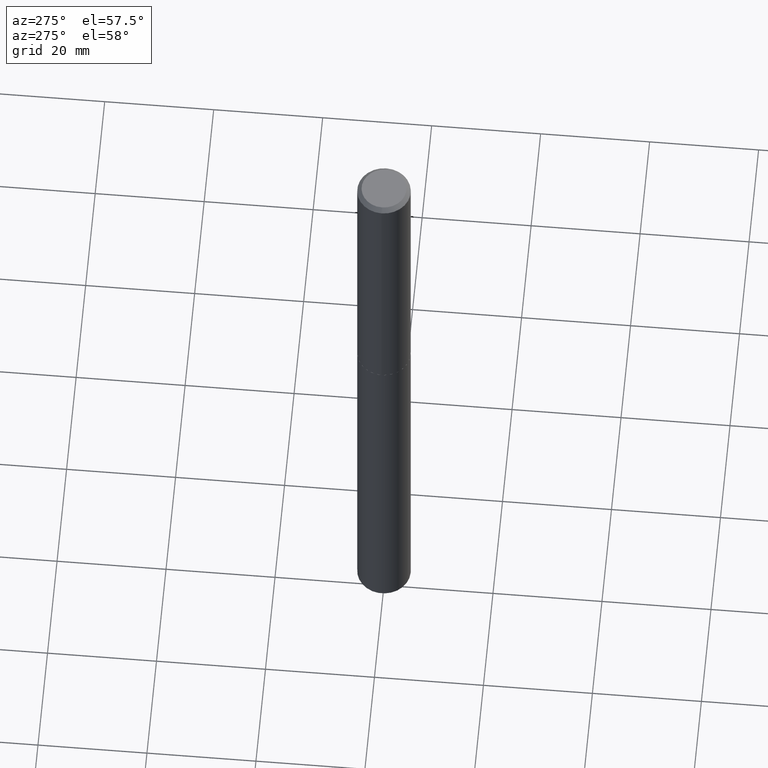
[diagram: clean part render]
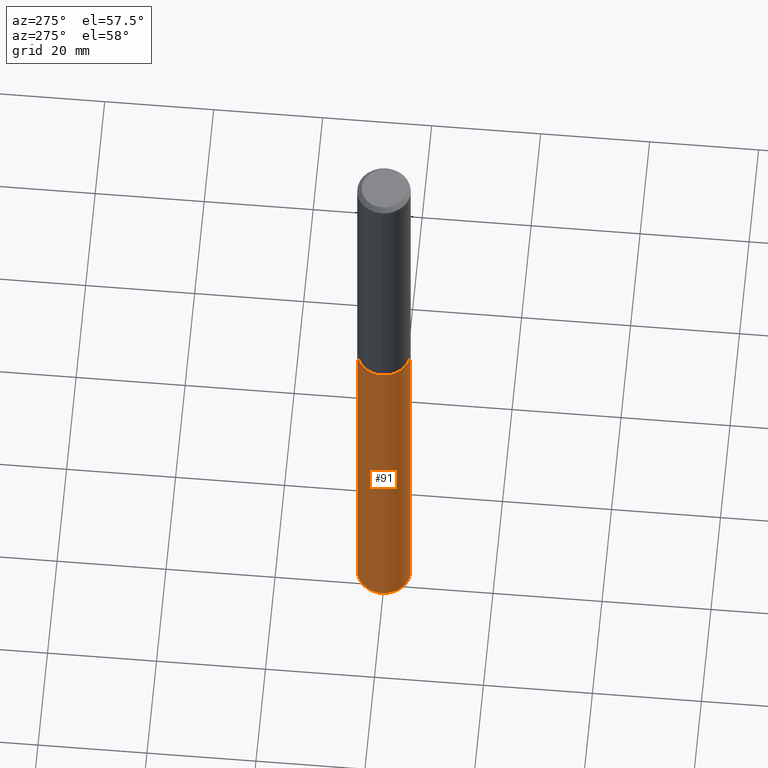
[diagram: same view with one face highlighted and labeled with its STEP entity id]
A machine part, auxiliary view. The second image highlights one B-rep face of the part: STEP entity #91.
In plain terms, the highlighted cylindrical surface (edge-blend (fillet) strip) has radius 4.8997 mm, axis along (-0, 0, 1).
Its self-contained STEP definition (entity closure, byte-faithful):
#3 = EDGE_CURVE ( 'NONE', #51, #147, #343, .T. ) ;
#13 = DIRECTION ( 'NONE',  ( -6.982962677686265133E-15, -1.000000000000000000, 2.832398127179122126E-15 ) ) ;
#25 = EDGE_CURVE ( 'NONE', #282, #310, #358, .T. ) ;
#33 = DIRECTION ( 'NONE',  ( -6.982962677686265133E-15, -1.000000000000000000, 5.664796254358244252E-15 ) ) ;
#51 = VERTEX_POINT ( 'NONE', #188 ) ;
#55 = CARTESIAN_POINT ( 'NONE',  ( 5.372205873427508601E-29, -7.670086205170624158E-15, -2.196800000000000530 ) ) ;
#66 = CYLINDRICAL_SURFACE ( 'NONE', #168, 0.1928999999999999881 ) ;
#70 = CARTESIAN_POINT ( 'NONE',  ( -1.347013500525555043E-15, -0.1929000000000178627, -5.120293986589583568 ) ) ;
#81 = CARTESIAN_POINT ( 'NONE',  ( 1.370636937281286422E-15, 0.1928999999999922998, -2.196800000000000974 ) ) ;
#91 = ADVANCED_FACE ( 'NONE', ( #248 ), #66, .T. ) ;
#92 = CARTESIAN_POINT ( 'NONE',  ( 5.372205873427508601E-29, -7.670086205170624158E-15, -2.196800000000000530 ) ) ;
#98 = DIRECTION ( 'NONE',  ( -6.982962677686265133E-15, -1.000000000000000000, 2.832398127179122126E-15 ) ) ;
#104 = ORIENTED_EDGE ( 'NONE', *, *, #25, .T. ) ;
#126 = EDGE_CURVE ( 'NONE', #310, #147, #219, .T. ) ;
#140 = DIRECTION ( 'NONE',  ( -2.445443870403616204E-29, 3.491517048301539205E-15, 1.000000000000000000 ) ) ;
#147 = VERTEX_POINT ( 'NONE', #198 ) ;
#150 = CARTESIAN_POINT ( 'NONE',  ( 1.252144632309483871E-28, -1.787751529995518748E-14, -5.120293986589584456 ) ) ;
#168 = AXIS2_PLACEMENT_3D ( 'NONE', #92, #306, #98 ) ;
#170 = EDGE_LOOP ( 'NONE', ( #280, #104, #202, #383 ) ) ;
#180 = DIRECTION ( 'NONE',  ( -2.445443870403616204E-29, 3.491517048301539205E-15, 1.000000000000000000 ) ) ;
#184 = DIRECTION ( 'NONE',  ( -2.445443870403616204E-29, 3.491517048301539205E-15, 1.000000000000000000 ) ) ;
#188 = CARTESIAN_POINT ( 'NONE',  ( 1.370636937281358800E-15, 0.1928999999999923276, -2.196800000000000974 ) ) ;
#191 = AXIS2_PLACEMENT_3D ( 'NONE', #150, #184, #33 ) ;
#198 = CARTESIAN_POINT ( 'NONE',  ( -1.347013500525626829E-15, -0.1929000000000076487, -2.196800000000000086 ) ) ;
#202 = ORIENTED_EDGE ( 'NONE', *, *, #126, .T. ) ;
#203 = CARTESIAN_POINT ( 'NONE',  ( 1.370636937281358012E-15, 0.1928999999999820580, -5.120293986589585344 ) ) ;
#210 = EDGE_CURVE ( 'NONE', #282, #51, #317, .T. ) ;
#219 = LINE ( 'NONE', #364, #266 ) ;
#248 = FACE_OUTER_BOUND ( 'NONE', #170, .T. ) ;
#266 = VECTOR ( 'NONE', #366, 39.37007874015748143 ) ;
#280 = ORIENTED_EDGE ( 'NONE', *, *, #210, .F. ) ;
#282 = VERTEX_POINT ( 'NONE', #203 ) ;
#306 = DIRECTION ( 'NONE',  ( -2.445443870403616204E-29, 3.491517048301539205E-15, 1.000000000000000000 ) ) ;
#310 = VERTEX_POINT ( 'NONE', #70 ) ;
#317 = LINE ( 'NONE', #81, #351 ) ;
#332 = AXIS2_PLACEMENT_3D ( 'NONE', #55, #180, #13 ) ;
#343 = CIRCLE ( 'NONE', #332, 0.1928999999999999881 ) ;
#351 = VECTOR ( 'NONE', #140, 39.37007874015748143 ) ;
#358 = CIRCLE ( 'NONE', #191, 0.1928999999999999881 ) ;
#364 = CARTESIAN_POINT ( 'NONE',  ( -1.347013500525626829E-15, -0.1929000000000076487, -2.196800000000000086 ) ) ;
#366 = DIRECTION ( 'NONE',  ( -2.445443870403616204E-29, 3.491517048301539205E-15, 1.000000000000000000 ) ) ;
#383 = ORIENTED_EDGE ( 'NONE', *, *, #3, .F. ) ;